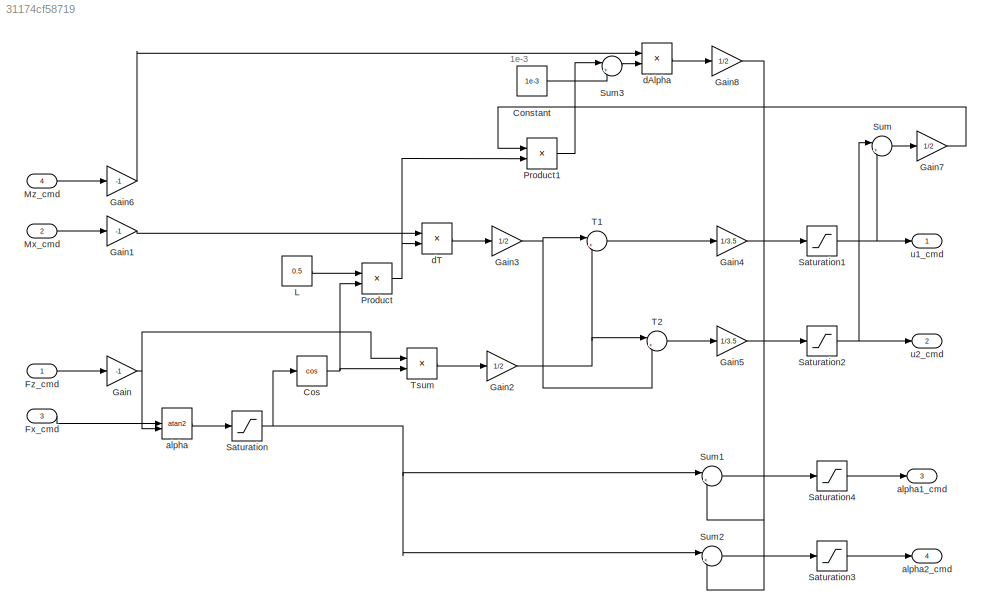
MODEL slx_31174cf58719
KIND model
CONFIG AbsTol = auto
CONFIG EnableMultiTasking = off
CONFIG FixedStep = auto
CONFIG MaxStep = auto
CONFIG MinStep = auto
CONFIG RelTol = 1e-3
CONFIG SampleTimeConstraint = Unconstrained
CONFIG SolverName = VariableStepAuto
CONFIG StartTime = 0.0
CONFIG StopTime = 10.0
BLOCK [Constant] Constant
  Value = 1e-3
BLOCK [Trigonometry] Cos
  Operator = cos
BLOCK [Inport] Fx_cmd
  Port = 3
BLOCK [Inport] Fz_cmd
BLOCK [Gain] Gain
  Gain = -1
BLOCK [Gain] Gain1
  Gain = -1
BLOCK [Gain] Gain2
  Gain = 1/2
BLOCK [Gain] Gain3
  Gain = 1/2
BLOCK [Gain] Gain4
  Gain = 1/3.5
BLOCK [Gain] Gain5
  Gain = 1/3.5
BLOCK [Gain] Gain6
  Gain = -1
BLOCK [Gain] Gain7
  Gain = 1/2
BLOCK [Gain] Gain8
  Gain = 1/2
BLOCK [Constant] L
  Value = 0.5
BLOCK [Inport] Mx_cmd
  Port = 2
BLOCK [Inport] Mz_cmd
  Port = 4
BLOCK [Product] Product
BLOCK [Product] Product1
BLOCK [Saturate] Saturation
  LowerLimit = -1
  UpperLimit = 1
BLOCK [Saturate] Saturation1
  LowerLimit = 0
  UpperLimit = 1
BLOCK [Saturate] Saturation2
  LowerLimit = 0
  UpperLimit = 1
BLOCK [Saturate] Saturation3
BLOCK [Saturate] Saturation4
BLOCK [Sum] Sum
  Inputs = |++
BLOCK [Sum] Sum1
  Inputs = |++
BLOCK [Sum] Sum2
  Inputs = |+-
BLOCK [Sum] Sum3
  Inputs = |++
BLOCK [Sum] T1
  Inputs = |++
BLOCK [Sum] T2
  Inputs = |+-
BLOCK [Product] Tsum
  Inputs = */
BLOCK [Trigonometry] alpha
  Operator = atan2
BLOCK [Outport] alpha1_cmd
  Port = 3
BLOCK [Outport] alpha2_cmd
  Port = 4
BLOCK [Product] dAlpha
  Inputs = */
BLOCK [Product] dT
  Inputs = */
BLOCK [Outport] u1_cmd
BLOCK [Outport] u2_cmd
  Port = 2
ANNOTATION (root): 1e-3
LINE Constant:1 -> Sum3:2
NET Cos:1 -> Product:2, Tsum:2
LINE Fx_cmd:1 -> alpha:1
LINE Fz_cmd:1 -> Gain:1
LINE Gain1:1 -> dT:1
NET Gain2:1 -> T1:2, T2:1
NET Gain3:1 -> T1:1, T2:2
LINE Gain4:1 -> Saturation1:1
LINE Gain5:1 -> Saturation2:1
LINE Gain6:1 -> dAlpha:1
LINE Gain7:1 -> Product1:1
NET Gain8:1 -> Sum1:2, Sum2:2
NET Gain:1 -> Tsum:1, alpha:2
LINE L:1 -> Product:1
LINE Mx_cmd:1 -> Gain1:1
LINE Mz_cmd:1 -> Gain6:1
LINE Product1:1 -> Sum3:1
NET Product:1 -> Product1:2, dT:2
NET Saturation1:1 -> Sum:2, u1_cmd:1
NET Saturation2:1 -> Sum:1, u2_cmd:1
LINE Saturation3:1 -> alpha2_cmd:1
LINE Saturation4:1 -> alpha1_cmd:1
NET Saturation:1 -> Cos:1, Sum1:1, Sum2:1
LINE Sum1:1 -> Saturation4:1
LINE Sum2:1 -> Saturation3:1
LINE Sum3:1 -> dAlpha:2
LINE Sum:1 -> Gain7:1
LINE T1:1 -> Gain4:1
LINE T2:1 -> Gain5:1
LINE Tsum:1 -> Gain2:1
LINE alpha:1 -> Saturation:1
LINE dAlpha:1 -> Gain8:1
LINE dT:1 -> Gain3:1
note: NET lines group one-source signal fan-out (src -> all destinations, sorted); 1:1 wires keep LINE
